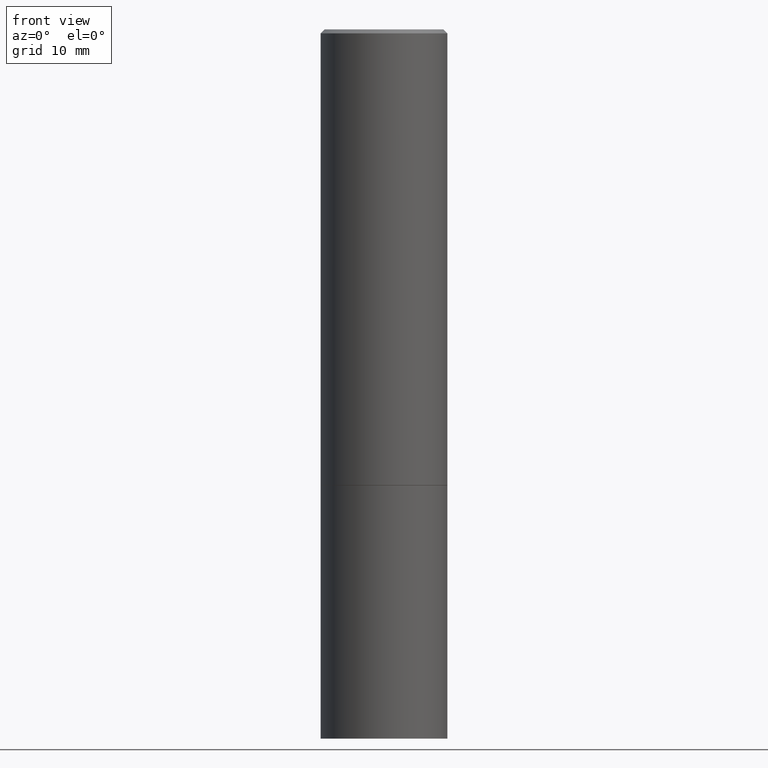
[diagram: clean part render]
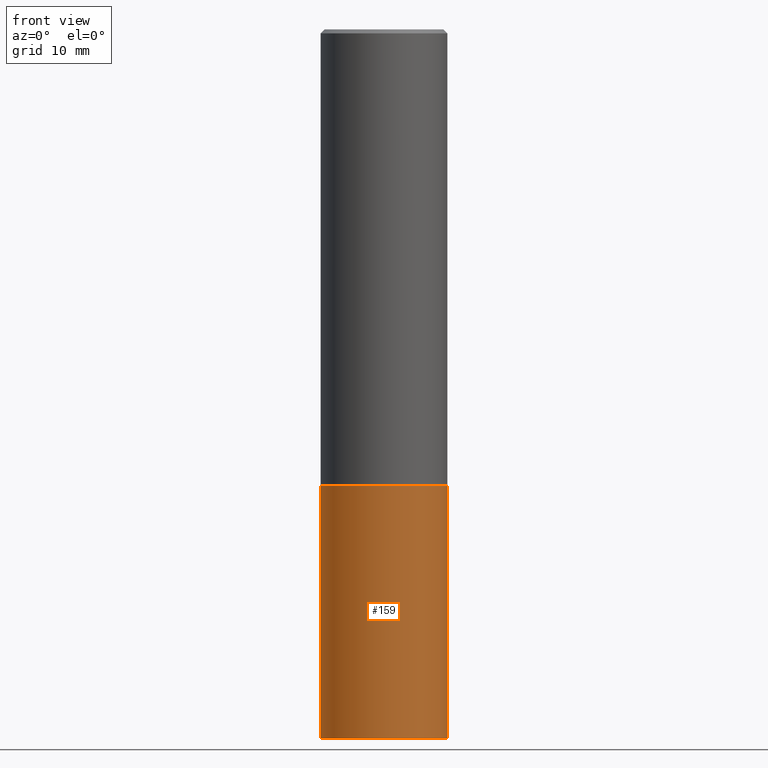
[diagram: same view with one face highlighted and labeled with its STEP entity id]
A machine part, front view. The second image highlights one B-rep face of the part: STEP entity #159.
In plain terms, the highlighted cylindrical surface (partial cylindrical patch) has radius 7.9375 mm, axis along (-0, 0, 1).
Its self-contained STEP definition (entity closure, byte-faithful):
#7 = LINE ( 'NONE', #247, #264 ) ;
#10 = ORIENTED_EDGE ( 'NONE', *, *, #39, .T. ) ;
#16 = DIRECTION ( 'NONE',  ( 1.000000000000000000, -6.982962677686269077E-15, 0.000000000000000000 ) ) ;
#20 = DIRECTION ( 'NONE',  ( -2.445468806185136597E-29, 3.491481338843145583E-15, 1.000000000000000000 ) ) ;
#39 = EDGE_CURVE ( 'NONE', #71, #72, #327, .T. ) ;
#47 = DIRECTION ( 'NONE',  ( 1.000000000000000000, -6.982962677686269077E-15, 0.000000000000000000 ) ) ;
#58 = DIRECTION ( 'NONE',  ( -2.445468806185136597E-29, 3.491481338843145583E-15, 1.000000000000000000 ) ) ;
#66 = CARTESIAN_POINT ( 'NONE',  ( 0.3125000000000000000, -1.003800884917403522E-14, -2.249999999999999556 ) ) ;
#69 = EDGE_CURVE ( 'NONE', #71, #205, #200, .T. ) ;
#71 = VERTEX_POINT ( 'NONE', #114 ) ;
#72 = VERTEX_POINT ( 'NONE', #313 ) ;
#74 = EDGE_LOOP ( 'NONE', ( #277, #10, #250, #305 ) ) ;
#83 = DIRECTION ( 'NONE',  ( -2.445468806185136597E-29, 3.491481338843145583E-15, 1.000000000000000000 ) ) ;
#102 = EDGE_CURVE ( 'NONE', #205, #191, #323, .T. ) ;
#114 = CARTESIAN_POINT ( 'NONE',  ( -0.3125000000000000000, -7.817562799923730025E-15, -3.500000000000000000 ) ) ;
#136 = AXIS2_PLACEMENT_3D ( 'NONE', #173, #20, #16 ) ;
#145 = AXIS2_PLACEMENT_3D ( 'NONE', #201, #58, #156 ) ;
#148 = CARTESIAN_POINT ( 'NONE',  ( -0.3125000000000000000, -7.817562799923730025E-15, -2.249999999999999556 ) ) ;
#156 = DIRECTION ( 'NONE',  ( 1.000000000000000000, -6.982962677686266711E-15, 4.876176775795936353E-29 ) ) ;
#159 = ADVANCED_FACE ( 'NONE', ( #182 ), #287, .T. ) ;
#173 = CARTESIAN_POINT ( 'NONE',  ( 8.559140821647976968E-29, -1.222018468595100934E-14, -3.500000000000000000 ) ) ;
#182 = FACE_OUTER_BOUND ( 'NONE', #74, .T. ) ;
#191 = VERTEX_POINT ( 'NONE', #66 ) ;
#200 = LINE ( 'NONE', #261, #219 ) ;
#201 = CARTESIAN_POINT ( 'NONE',  ( 0.000000000000000000, 0.000000000000000000, 0.000000000000000000 ) ) ;
#205 = VERTEX_POINT ( 'NONE', #148 ) ;
#214 = AXIS2_PLACEMENT_3D ( 'NONE', #267, #83, #47 ) ;
#219 = VECTOR ( 'NONE', #359, 39.37007874015748143 ) ;
#226 = EDGE_CURVE ( 'NONE', #72, #191, #7, .T. ) ;
#240 = DIRECTION ( 'NONE',  ( -2.445468806185136877E-29, 3.491481338843145188E-15, 1.000000000000000000 ) ) ;
#247 = CARTESIAN_POINT ( 'NONE',  ( 0.3125000000000000000, -2.182175836776958347E-15, 1.523805242436230075E-29 ) ) ;
#250 = ORIENTED_EDGE ( 'NONE', *, *, #226, .T. ) ;
#261 = CARTESIAN_POINT ( 'NONE',  ( -0.3125000000000000000, 2.220446049250313081E-15, -1.537167215704658232E-29 ) ) ;
#264 = VECTOR ( 'NONE', #240, 39.37007874015748143 ) ;
#267 = CARTESIAN_POINT ( 'NONE',  ( 5.502304813916556222E-29, -7.855833012397076871E-15, -2.249999999999999556 ) ) ;
#277 = ORIENTED_EDGE ( 'NONE', *, *, #69, .F. ) ;
#287 = CYLINDRICAL_SURFACE ( 'NONE', #145, 0.3125000000000000000 ) ;
#305 = ORIENTED_EDGE ( 'NONE', *, *, #102, .F. ) ;
#313 = CARTESIAN_POINT ( 'NONE',  ( 0.3125000000000000000, -1.440236052272796769E-14, -3.500000000000000000 ) ) ;
#323 = CIRCLE ( 'NONE', #214, 0.3125000000000000000 ) ;
#327 = CIRCLE ( 'NONE', #136, 0.3125000000000000000 ) ;
#359 = DIRECTION ( 'NONE',  ( -2.445468806185136877E-29, 3.491481338843145188E-15, 1.000000000000000000 ) ) ;